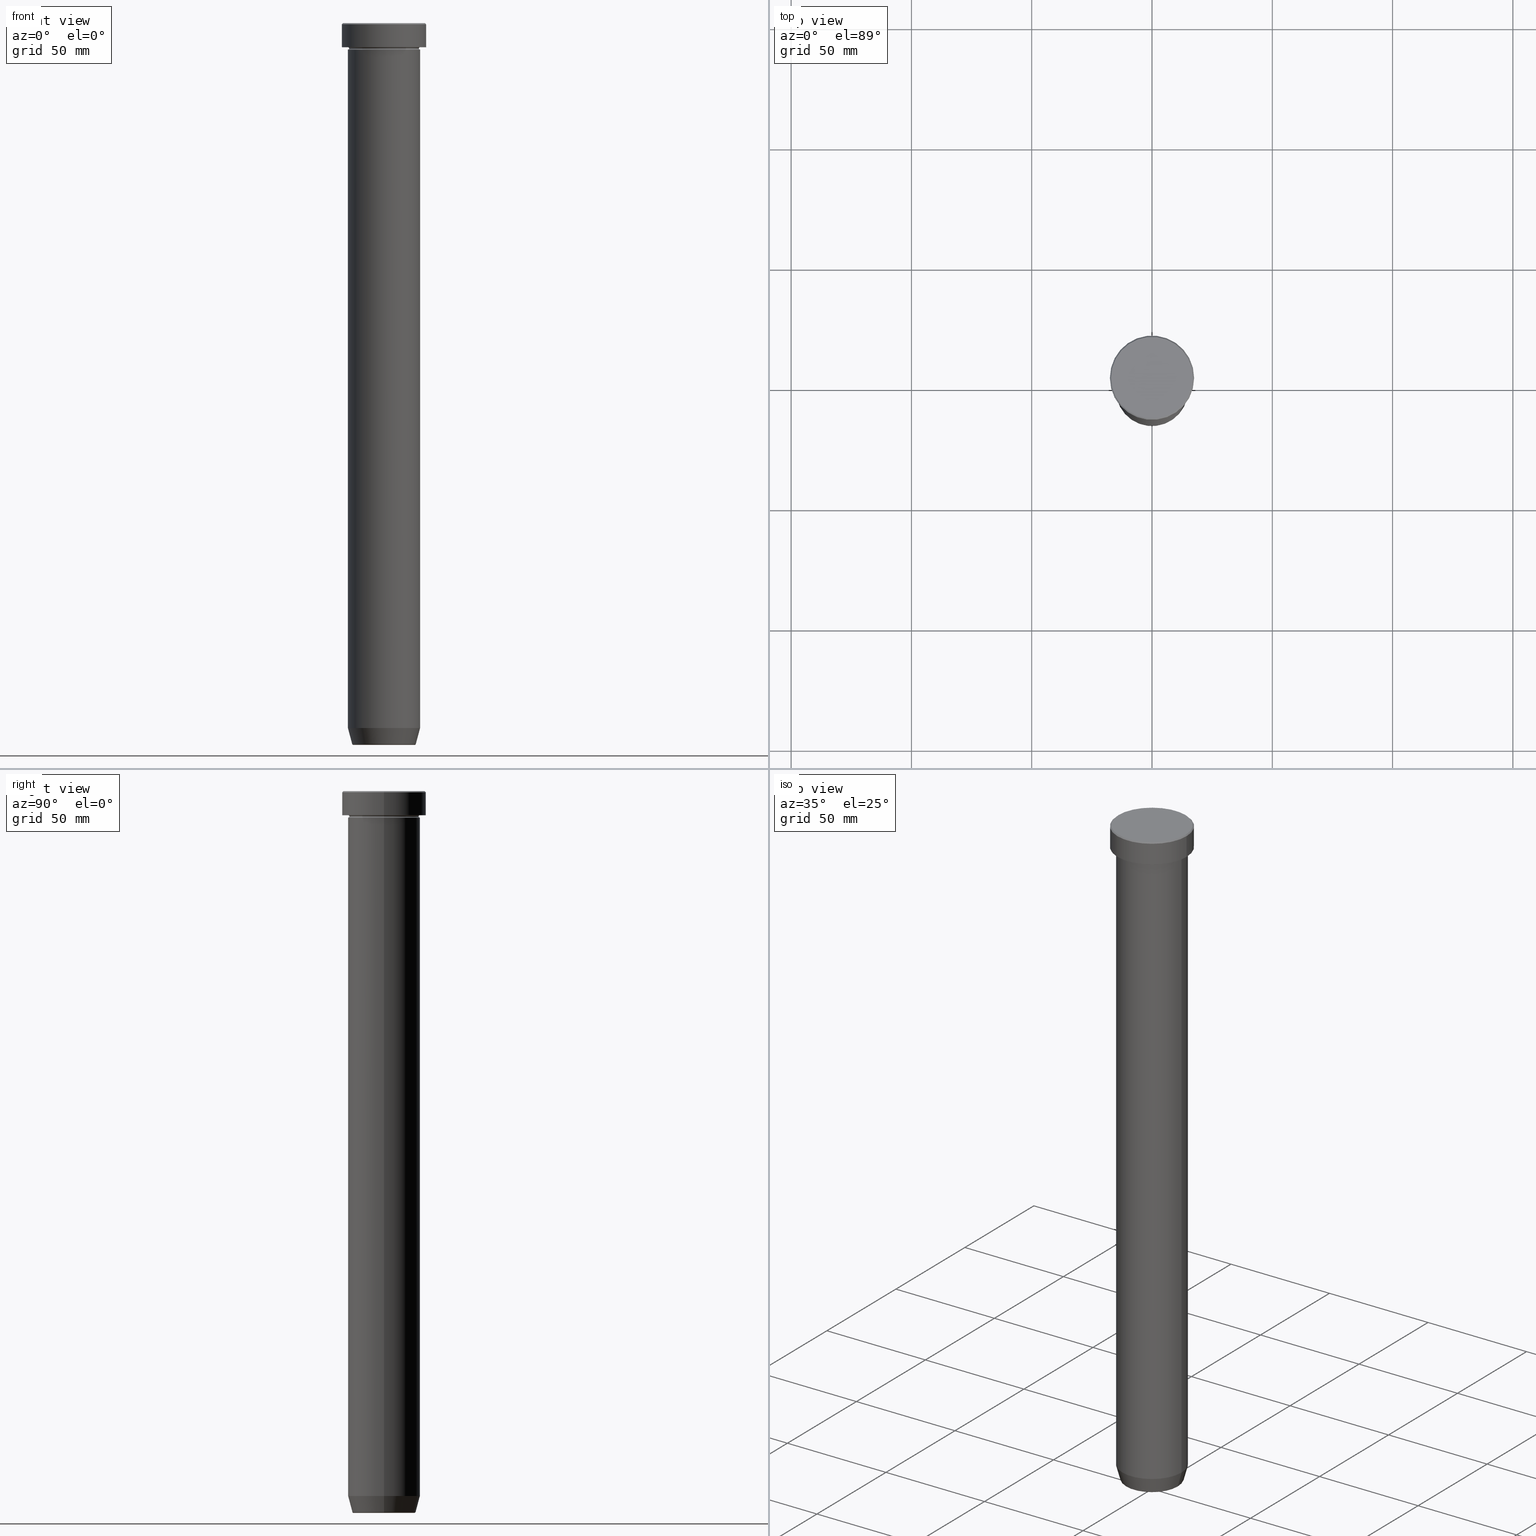
[diagram: canonical four-view strip — front | top / right | iso, engineering-drawing reading convention]
A machine part, canonical four-view strip (front | top / right | iso — engineering-drawing reading convention). The complete STEP part file that produces these views, byte-faithful:
ISO-10303-21;
HEADER;
FILE_DESCRIPTION (( 'STEP AP203' ),
    '1' );
FILE_NAME ('7646.STEP',
    '2024-01-02T17:36:42',
    ( '' ),
    ( '' ),
    'SwSTEP 2.0',
    'SolidWorks 2019',
    '' );
FILE_SCHEMA (( 'CONFIG_CONTROL_DESIGN' ));
ENDSEC;

DATA;
#1 = DIRECTION ( 'NONE',  ( -0.000000000000000000, -0.000000000000000000, 1.000000000000000000 ) ) ;
#2 = EDGE_CURVE ( 'NONE', #7, #527, #594, .T. ) ;
#3 = EDGE_LOOP ( 'NONE', ( #480, #58, #198, #115 ) ) ;
#4 =( NAMED_UNIT ( * ) SI_UNIT ( $, .STERADIAN. ) SOLID_ANGLE_UNIT ( ) );
#5 = CONICAL_SURFACE ( 'NONE', #574, 13.12435565298213547, 0.2617993877991497964 ) ;
#6 = FACE_OUTER_BOUND ( 'NONE', #286, .T. ) ;
#7 = VERTEX_POINT ( 'NONE', #110 ) ;
#8 = CIRCLE ( 'NONE', #329, 14.49999999999999822 ) ;
#9 = APPROVAL_ROLE ( '' ) ;
#10 = DIRECTION ( 'NONE',  ( -0.000000000000000000, -0.000000000000000000, 1.000000000000000000 ) ) ;
#11 = EDGE_LOOP ( 'NONE', ( #140, #394 ) ) ;
#12 = CARTESIAN_POINT ( 'NONE',  ( 0.000000000000000000, 0.000000000000000000, -0.5000000000000073275 ) ) ;
#13 = ORIENTED_EDGE ( 'NONE', *, *, #53, .F. ) ;
#14 = LOCAL_TIME ( 18, 36, 42.00000000000000000, #338 ) ;
#15 = AXIS2_PLACEMENT_3D ( 'NONE', #567, #474, #59 ) ;
#16 = ORIENTED_EDGE ( 'NONE', *, *, #336, .F. ) ;
#17 = VERTEX_POINT ( 'NONE', #203 ) ;
#18 = CARTESIAN_POINT ( 'NONE',  ( 0.000000000000000000, 0.000000000000000000, -36.00000000000000000 ) ) ;
#19 = VECTOR ( 'NONE', #302, 1000.000000000000000 ) ;
#20 = AXIS2_PLACEMENT_3D ( 'NONE', #535, #248, #212 ) ;
#21 = ORIENTED_EDGE ( 'NONE', *, *, #560, .F. ) ;
#22 = DIRECTION ( 'NONE',  ( -0.000000000000000000, -0.000000000000000000, 1.000000000000000000 ) ) ;
#23 = TOROIDAL_SURFACE ( 'NONE', #56, 15.00000000000000000, 0.5000000000000000000 ) ;
#24 = CALENDAR_DATE ( 2024, 2, 1 ) ;
#25 = ORIENTED_EDGE ( 'NONE', *, *, #300, .F. ) ;
#26 = DIRECTION ( 'NONE',  ( 0.7071067811865426878, 8.659560562354874926E-17, -0.7071067811865524577 ) ) ;
#27 = ADVANCED_FACE ( 'NONE', ( #397 ), #289, .F. ) ;
#28 = PERSON_AND_ORGANIZATION_ROLE ( 'classification_officer' ) ;
#29 = DIRECTION ( 'NONE',  ( -0.000000000000000000, -0.000000000000000000, 1.000000000000000000 ) ) ;
#30 = DIRECTION ( 'NONE',  ( -0.000000000000000000, -0.000000000000000000, 1.000000000000000000 ) ) ;
#31 = CIRCLE ( 'NONE', #365, 17.50000000000000000 ) ;
#32 = CARTESIAN_POINT ( 'NONE',  ( 0.000000000000000000, 0.000000000000000000, -300.0000000000000000 ) ) ;
#33 = DIRECTION ( 'NONE',  ( -1.000000000000000000, -1.224646799147349509E-16, 0.000000000000000000 ) ) ;
#34 = CARTESIAN_POINT ( 'NONE',  ( 0.000000000000000000, 0.000000000000000000, 0.000000000000000000 ) ) ;
#35 = DIRECTION ( 'NONE',  ( 1.224646799147353207E-16, 1.000000000000000000, 0.000000000000000000 ) ) ;
#36 = DIRECTION ( 'NONE',  ( -0.000000000000000000, -0.000000000000000000, 1.000000000000000000 ) ) ;
#37 = CARTESIAN_POINT ( 'NONE',  ( 15.00000000000000000, 0.000000000000000000, -36.00000000000000000 ) ) ;
#38 = AXIS2_PLACEMENT_3D ( 'NONE', #18, #197, #388 ) ;
#39 = CIRCLE ( 'NONE', #518, 17.50000000000000000 ) ;
#40 = VECTOR ( 'NONE', #22, 1000.000000000000000 ) ;
#41 = DIRECTION ( 'NONE',  ( -0.000000000000000000, -0.000000000000000000, 1.000000000000000000 ) ) ;
#42 = ORIENTED_EDGE ( 'NONE', *, *, #362, .T. ) ;
#43 = FACE_OUTER_BOUND ( 'NONE', #293, .T. ) ;
#44 = APPROVAL ( #418, 'NEUR�EN�' ) ;
#45 = EDGE_CURVE ( 'NONE', #64, #385, #344, .T. ) ;
#46 = FACE_OUTER_BOUND ( 'NONE', #490, .T. ) ;
#47 = ORIENTED_EDGE ( 'NONE', *, *, #551, .F. ) ;
#48 = APPROVAL_ROLE ( '' ) ;
#49 = DIRECTION ( 'NONE',  ( -0.000000000000000000, -0.000000000000000000, 1.000000000000000000 ) ) ;
#50 = ORIENTED_EDGE ( 'NONE', *, *, #118, .T. ) ;
#51 = LINE ( 'NONE', #215, #72 ) ;
#52 = TOROIDAL_SURFACE ( 'NONE', #379, 12.74069215899265828, 0.5000000000000000000 ) ;
#53 = EDGE_CURVE ( 'NONE', #339, #233, #377, .T. ) ;
#54 = CARTESIAN_POINT ( 'NONE',  ( 0.000000000000000000, 0.000000000000000000, 0.000000000000000000 ) ) ;
#55 = EDGE_LOOP ( 'NONE', ( #386, #486, #571, #330 ) ) ;
#56 = AXIS2_PLACEMENT_3D ( 'NONE', #559, #138, #182 ) ;
#57 = DIRECTION ( 'NONE',  ( 1.000000000000000000, 0.000000000000000000, 0.000000000000000000 ) ) ;
#58 = ORIENTED_EDGE ( 'NONE', *, *, #551, .T. ) ;
#59 = DIRECTION ( 'NONE',  ( 1.000000000000000000, 0.000000000000000000, 0.000000000000000000 ) ) ;
#60 = ORIENTED_EDGE ( 'NONE', *, *, #390, .F. ) ;
#61 = AXIS2_PLACEMENT_3D ( 'NONE', #319, #1, #183 ) ;
#62 = ORIENTED_EDGE ( 'NONE', *, *, #300, .T. ) ;
#63 = CARTESIAN_POINT ( 'NONE',  ( 0.000000000000000000, 3.061616997868383121E-14, -300.0000000000000000 ) ) ;
#64 = VERTEX_POINT ( 'NONE', #37 ) ;
#65 = DIRECTION ( 'NONE',  ( 1.000000000000000000, 0.000000000000000000, 0.000000000000000000 ) ) ;
#66 = CIRCLE ( 'NONE', #583, 13.22365507213718949 ) ;
#67 = VECTOR ( 'NONE', #26, 1000.000000000000000 ) ;
#68 = ORIENTED_EDGE ( 'NONE', *, *, #336, .T. ) ;
#69 = EDGE_CURVE ( 'NONE', #108, #297, #540, .T. ) ;
#70 = ADVANCED_FACE ( 'NONE', ( #356 ), #75, .T. ) ;
#71 = CARTESIAN_POINT ( 'NONE',  ( -17.50000000000000000, 2.143131898507868248E-15, -0.5000000000000073275 ) ) ;
#72 = VECTOR ( 'NONE', #449, 1000.000000000000000 ) ;
#73 = ORIENTED_EDGE ( 'NONE', *, *, #547, .T. ) ;
#74 = CARTESIAN_POINT ( 'NONE',  ( 0.000000000000000000, 0.000000000000000000, -9.999999999999998224 ) ) ;
#75 = CYLINDRICAL_SURFACE ( 'NONE', #205, 17.50000000000000000 ) ;
#76 = ADVANCED_FACE ( 'NONE', ( #175 ), #359, .T. ) ;
#77 = CARTESIAN_POINT ( 'NONE',  ( -15.00000000000000000, 0.000000000000000000, -9.999999999999998224 ) ) ;
#78 = PERSON_AND_ORGANIZATION ( #239, #532 ) ;
#79 = CIRCLE ( 'NONE', #497, 12.74069215899265828 ) ;
#80 = CARTESIAN_POINT ( 'NONE',  ( 0.000000000000000000, 0.000000000000000000, -11.00000000000000000 ) ) ;
#81 = AXIS2_PLACEMENT_3D ( 'NONE', #106, #298, #204 ) ;
#82 = DIRECTION ( 'NONE',  ( -0.000000000000000000, -0.000000000000000000, 1.000000000000000000 ) ) ;
#83 = CARTESIAN_POINT ( 'NONE',  ( 12.74069215899265828, 0.000000000000000000, -299.5000000000000000 ) ) ;
#84 = DIRECTION ( 'NONE',  ( -0.000000000000000000, -0.000000000000000000, 1.000000000000000000 ) ) ;
#85 = DIRECTION ( 'NONE',  ( 0.000000000000000000, 0.000000000000000000, -1.000000000000000000 ) ) ;
#86 = CARTESIAN_POINT ( 'NONE',  ( -14.49999999999999822, 1.806354028742345802E-15, -10.49999999999999822 ) ) ;
#87 = DIRECTION ( 'NONE',  ( 0.000000000000000000, 0.000000000000000000, -1.000000000000000000 ) ) ;
#88 = VECTOR ( 'NONE', #36, 1000.000000000000000 ) ;
#89 = VECTOR ( 'NONE', #126, 1000.000000000000000 ) ;
#90 = CARTESIAN_POINT ( 'NONE',  ( 17.00000000000000000, 2.112515728529184067E-15, 0.000000000000000000 ) ) ;
#91 = AXIS2_PLACEMENT_3D ( 'NONE', #74, #586, #539 ) ;
#92 = PERSON_AND_ORGANIZATION ( #239, #532 ) ;
#93 = DIRECTION ( 'NONE',  ( 0.000000000000000000, 0.000000000000000000, -1.000000000000000000 ) ) ;
#94 = ORIENTED_EDGE ( 'NONE', *, *, #69, .T. ) ;
#95 = DIRECTION ( 'NONE',  ( -0.000000000000000000, -0.000000000000000000, 1.000000000000000000 ) ) ;
#96 = DESIGN_CONTEXT ( 'detailed design', #396, 'design' ) ;
#97 = ADVANCED_FACE ( 'NONE', ( #218 ), #496, .F. ) ;
#98 = CARTESIAN_POINT ( 'NONE',  ( 0.000000000000000000, 0.000000000000000000, 0.000000000000000000 ) ) ;
#99 = ORIENTED_EDGE ( 'NONE', *, *, #503, .F. ) ;
#100 = DATE_AND_TIME ( #141, #235 ) ;
#101 = AXIS2_PLACEMENT_3D ( 'NONE', #283, #512, #423 ) ;
#102 = DIRECTION ( 'NONE',  ( -1.000000000000000000, 0.000000000000000000, 0.000000000000000000 ) ) ;
#103 = ORIENTED_EDGE ( 'NONE', *, *, #207, .T. ) ;
#104 = CYLINDRICAL_SURFACE ( 'NONE', #468, 15.00000000000000000 ) ;
#105 = ORIENTED_EDGE ( 'NONE', *, *, #362, .F. ) ;
#106 = CARTESIAN_POINT ( 'NONE',  ( 0.000000000000000000, 0.000000000000000000, 0.000000000000000000 ) ) ;
#107 = AXIS2_PLACEMENT_3D ( 'NONE', #269, #460, #221 ) ;
#108 = VERTEX_POINT ( 'NONE', #554 ) ;
#109 = AXIS2_PLACEMENT_3D ( 'NONE', #549, #407, #552 ) ;
#110 = CARTESIAN_POINT ( 'NONE',  ( 15.00000000000000000, 1.836970198721029589E-15, -9.999999999999998224 ) ) ;
#111 = VECTOR ( 'NONE', #514, 1000.000000000000114 ) ;
#112 = EDGE_LOOP ( 'NONE', ( #528, #42, #155, #99 ) ) ;
#113 = PERSON_AND_ORGANIZATION_ROLE ( 'design_supplier' ) ;
#114 = APPROVAL ( #578, 'NEUR�EN�' ) ;
#115 = ORIENTED_EDGE ( 'NONE', *, *, #2, .F. ) ;
#116 = FACE_OUTER_BOUND ( 'NONE', #55, .T. ) ;
#117 = AXIS2_PLACEMENT_3D ( 'NONE', #322, #426, #230 ) ;
#118 = EDGE_CURVE ( 'NONE', #332, #422, #415, .T. ) ;
#119 = ORIENTED_EDGE ( 'NONE', *, *, #363, .T. ) ;
#120 = DIRECTION ( 'NONE',  ( 1.000000000000000000, 0.000000000000000000, 0.000000000000000000 ) ) ;
#121 = AXIS2_PLACEMENT_3D ( 'NONE', #257, #445, #33 ) ;
#122 = VERTEX_POINT ( 'NONE', #593 ) ;
#123 = CARTESIAN_POINT ( 'NONE',  ( 0.000000000000000000, 0.000000000000000000, 0.000000000000000000 ) ) ;
#124 = DATE_AND_TIME ( #24, #582 ) ;
#125 = CARTESIAN_POINT ( 'NONE',  ( -15.00000000000000000, 1.836970198721029589E-15, 0.000000000000000000 ) ) ;
#126 = DIRECTION ( 'NONE',  ( -0.7071067811865426878, 0.000000000000000000, -0.7071067811865524577 ) ) ;
#127 = PERSON_AND_ORGANIZATION_ROLE ( 'creator' ) ;
#128 = DIRECTION ( 'NONE',  ( 0.000000000000000000, -1.000000000000000000, 0.000000000000000000 ) ) ;
#129 = AXIS2_PLACEMENT_3D ( 'NONE', #546, #84, #264 ) ;
#130 = DIRECTION ( 'NONE',  ( -0.000000000000000000, -0.000000000000000000, 1.000000000000000000 ) ) ;
#131 = EDGE_CURVE ( 'NONE', #233, #231, #145, .T. ) ;
#132 = DIRECTION ( 'NONE',  ( -1.000000000000000000, 0.000000000000000000, -0.000000000000000000 ) ) ;
#133 = AXIS2_PLACEMENT_3D ( 'NONE', #409, #351, #171 ) ;
#134 = AXIS2_PLACEMENT_3D ( 'NONE', #589, #395, #489 ) ;
#135 = DIRECTION ( 'NONE',  ( 0.2588190451025210725, 0.000000000000000000, 0.9659258262890680902 ) ) ;
#136 = CARTESIAN_POINT ( 'NONE',  ( -15.00000000000000000, 1.836970198721029589E-15, -11.00000000000000000 ) ) ;
#137 = EDGE_LOOP ( 'NONE', ( #25, #157, #165, #381 ) ) ;
#138 = DIRECTION ( 'NONE',  ( 0.000000000000000000, 0.000000000000000000, -1.000000000000000000 ) ) ;
#139 = DIRECTION ( 'NONE',  ( -1.000000000000000000, 0.000000000000000000, 0.000000000000000000 ) ) ;
#140 = ORIENTED_EDGE ( 'NONE', *, *, #456, .T. ) ;
#141 = CALENDAR_DATE ( 2024, 2, 1 ) ;
#142 = EDGE_CURVE ( 'NONE', #385, #231, #211, .T. ) ;
#143 = CARTESIAN_POINT ( 'NONE',  ( -13.22365507213718949, 1.728200442216588189E-15, -299.6294095225512137 ) ) ;
#144 = EDGE_LOOP ( 'NONE', ( #280, #228 ) ) ;
#145 = CIRCLE ( 'NONE', #227, 15.00000000000000000 ) ;
#146 = TOROIDAL_SURFACE ( 'NONE', #488, 12.74069215899265828, 0.5000000000000000000 ) ;
#147 = FACE_OUTER_BOUND ( 'NONE', #374, .T. ) ;
#148 = EDGE_LOOP ( 'NONE', ( #482, #569, #320, #13 ) ) ;
#149 = DIRECTION ( 'NONE',  ( 0.000000000000000000, -0.000000000000000000, 1.000000000000000000 ) ) ;
#150 = ORIENTED_EDGE ( 'NONE', *, *, #69, .F. ) ;
#151 = EDGE_CURVE ( 'NONE', #575, #339, #434, .T. ) ;
#152 = ADVANCED_FACE ( 'NONE', ( #405 ), #595, .T. ) ;
#153 = VERTEX_POINT ( 'NONE', #353 ) ;
#154 = AXIS2_PLACEMENT_3D ( 'NONE', #443, #41, #174 ) ;
#155 = ORIENTED_EDGE ( 'NONE', *, *, #348, .T. ) ;
#156 = ADVANCED_FACE ( 'NONE', ( #167 ), #326, .F. ) ;
#157 = ORIENTED_EDGE ( 'NONE', *, *, #456, .F. ) ;
#158 = EDGE_CURVE ( 'NONE', #536, #422, #173, .T. ) ;
#159 = CARTESIAN_POINT ( 'NONE',  ( 0.000000000000000000, 0.000000000000000000, -0.5000000000000073275 ) ) ;
#160 = APPROVAL_ROLE ( '' ) ;
#161 = ORIENTED_EDGE ( 'NONE', *, *, #459, .F. ) ;
#162 = DIRECTION ( 'NONE',  ( -0.000000000000000000, -0.000000000000000000, 1.000000000000000000 ) ) ;
#163 = AXIS2_PLACEMENT_3D ( 'NONE', #232, #93, #139 ) ;
#164 = CIRCLE ( 'NONE', #425, 15.00000000000000000 ) ;
#165 = ORIENTED_EDGE ( 'NONE', *, *, #158, .T. ) ;
#166 = CARTESIAN_POINT ( 'NONE',  ( -12.74069215899265828, 1.589857736427681035E-15, -300.0000000000000000 ) ) ;
#167 = FACE_OUTER_BOUND ( 'NONE', #323, .T. ) ;
#168 = EDGE_CURVE ( 'NONE', #428, #536, #79, .T. ) ;
#169 = FACE_OUTER_BOUND ( 'NONE', #516, .T. ) ;
#170 = PERSON_AND_ORGANIZATION ( #239, #532 ) ;
#171 = DIRECTION ( 'NONE',  ( -1.000000000000000000, 0.000000000000000000, -0.000000000000000000 ) ) ;
#172 = LINE ( 'NONE', #310, #111 ) ;
#173 = CIRCLE ( 'NONE', #455, 0.5000000000000004441 ) ;
#174 = DIRECTION ( 'NONE',  ( 1.000000000000000000, 0.000000000000000000, 0.000000000000000000 ) ) ;
#175 = FACE_OUTER_BOUND ( 'NONE', #458, .T. ) ;
#176 = DIRECTION ( 'NONE',  ( -0.000000000000000000, -0.000000000000000000, 1.000000000000000000 ) ) ;
#177 = EDGE_CURVE ( 'NONE', #122, #209, #573, .T. ) ;
#178 = ADVANCED_FACE ( 'NONE', ( #599, #448 ), #505, .T. ) ;
#179 = DIRECTION ( 'NONE',  ( -0.000000000000000000, -0.000000000000000000, 1.000000000000000000 ) ) ;
#180 = VECTOR ( 'NONE', #472, 1000.000000000000000 ) ;
#181 = ORIENTED_EDGE ( 'NONE', *, *, #502, .F. ) ;
#182 = DIRECTION ( 'NONE',  ( -1.000000000000000000, 0.000000000000000000, 0.000000000000000000 ) ) ;
#183 = DIRECTION ( 'NONE',  ( -1.000000000000000000, 0.000000000000000000, 0.000000000000000000 ) ) ;
#184 = AXIS2_PLACEMENT_3D ( 'NONE', #406, #368, #464 ) ;
#185 = ORIENTED_EDGE ( 'NONE', *, *, #419, .F. ) ;
#186 = CALENDAR_DATE ( 2024, 2, 1 ) ;
#187 = DIRECTION ( 'NONE',  ( 1.224646799147353207E-16, 1.000000000000000000, 0.000000000000000000 ) ) ;
#188 = ORIENTED_EDGE ( 'NONE', *, *, #372, .T. ) ;
#189 = LOCAL_TIME ( 18, 36, 42.00000000000000000, #225 ) ;
#190 = CARTESIAN_POINT ( 'NONE',  ( 14.49999999999999822, 0.000000000000000000, -10.49999999999999822 ) ) ;
#191 = ORIENTED_EDGE ( 'NONE', *, *, #151, .T. ) ;
#192 = CIRCLE ( 'NONE', #101, 17.00000000000000000 ) ;
#193 = CC_DESIGN_PERSON_AND_ORGANIZATION_ASSIGNMENT ( #364, #317, ( #521 ) ) ;
#194 = DIRECTION ( 'NONE',  ( -1.000000000000000000, 1.224646799147353454E-16, 0.000000000000000000 ) ) ;
#195 = ORIENTED_EDGE ( 'NONE', *, *, #459, .T. ) ;
#196 = ORIENTED_EDGE ( 'NONE', *, *, #254, .T. ) ;
#197 = DIRECTION ( 'NONE',  ( -0.000000000000000000, -0.000000000000000000, 1.000000000000000000 ) ) ;
#198 = ORIENTED_EDGE ( 'NONE', *, *, #581, .T. ) ;
#199 = PLANE ( 'NONE',  #478 ) ;
#200 = PERSON_AND_ORGANIZATION ( #239, #532 ) ;
#201 = ORIENTED_EDGE ( 'NONE', *, *, #495, .F. ) ;
#202 = CARTESIAN_POINT ( 'NONE',  ( 0.000000000000000000, 0.000000000000000000, -36.00000000000000000 ) ) ;
#203 = CARTESIAN_POINT ( 'NONE',  ( -17.50000000000000000, 2.143131898507868248E-15, -9.999999999999998224 ) ) ;
#204 = DIRECTION ( 'NONE',  ( 1.000000000000000000, 0.000000000000000000, 0.000000000000000000 ) ) ;
#205 = AXIS2_PLACEMENT_3D ( 'NONE', #591, #176, #256 ) ;
#206 = CIRCLE ( 'NONE', #287, 15.00000000000000000 ) ;
#207 = EDGE_CURVE ( 'NONE', #108, #17, #427, .T. ) ;
#208 = CARTESIAN_POINT ( 'NONE',  ( 0.000000000000000000, 0.000000000000000000, -9.999999999999998224 ) ) ;
#209 = VERTEX_POINT ( 'NONE', #378 ) ;
#210 = CARTESIAN_POINT ( 'NONE',  ( 12.74069215899265828, 0.000000000000000000, -300.0000000000000000 ) ) ;
#211 = LINE ( 'NONE', #125, #19 ) ;
#212 = DIRECTION ( 'NONE',  ( 1.000000000000000000, 0.000000000000000000, 0.000000000000000000 ) ) ;
#213 = DIRECTION ( 'NONE',  ( 0.000000000000000000, 0.000000000000000000, -1.000000000000000000 ) ) ;
#214 = CC_DESIGN_DATE_AND_TIME_ASSIGNMENT ( #100, #517, ( #537 ) ) ;
#215 = CARTESIAN_POINT ( 'NONE',  ( -15.00000000000000000, 1.836970198721029589E-15, 0.000000000000000000 ) ) ;
#216 = AXIS2_PLACEMENT_3D ( 'NONE', #63, #584, #431 ) ;
#217 = AXIS2_PLACEMENT_3D ( 'NONE', #34, #213, #544 ) ;
#218 = FACE_OUTER_BOUND ( 'NONE', #144, .T. ) ;
#219 = CARTESIAN_POINT ( 'NONE',  ( -15.00000000000000000, 0.000000000000000000, -10.49999999999999822 ) ) ;
#220 = DIRECTION ( 'NONE',  ( 0.000000000000000000, 0.000000000000000000, -1.000000000000000000 ) ) ;
#221 = DIRECTION ( 'NONE',  ( 1.000000000000000000, 0.000000000000000000, 0.000000000000000000 ) ) ;
#222 = UNCERTAINTY_MEASURE_WITH_UNIT (LENGTH_MEASURE( 1.000000000000000082E-05 ), #454, 'distance_accuracy_value', 'NONE');
#223 = CARTESIAN_POINT ( 'NONE',  ( 17.50000000000000000, 0.000000000000000000, -0.5000000000000073275 ) ) ;
#224 = EDGE_LOOP ( 'NONE', ( #161, #470, #188, #506 ) ) ;
#225 = COORDINATED_UNIVERSAL_TIME_OFFSET ( 1, 0, .AHEAD. ) ;
#226 = CARTESIAN_POINT ( 'NONE',  ( 15.00000000000000000, 0.000000000000000000, 0.000000000000000000 ) ) ;
#227 = AXIS2_PLACEMENT_3D ( 'NONE', #80, #597, #446 ) ;
#228 = ORIENTED_EDGE ( 'NONE', *, *, #587, .T. ) ;
#229 = COORDINATED_UNIVERSAL_TIME_OFFSET ( 1, 0, .AHEAD. ) ;
#230 = DIRECTION ( 'NONE',  ( 1.000000000000000000, 0.000000000000000000, 0.000000000000000000 ) ) ;
#231 = VERTEX_POINT ( 'NONE', #136 ) ;
#232 = CARTESIAN_POINT ( 'NONE',  ( 0.000000000000000000, 0.000000000000000000, 0.000000000000000000 ) ) ;
#233 = VERTEX_POINT ( 'NONE', #369 ) ;
#234 = ADVANCED_FACE ( 'NONE', ( #147 ), #545, .T. ) ;
#235 = LOCAL_TIME ( 18, 36, 42.00000000000000000, #229 ) ;
#236 = CARTESIAN_POINT ( 'NONE',  ( 0.000000000000000000, 0.000000000000000000, -299.6294095225512137 ) ) ;
#237 = CLOSED_SHELL ( 'NONE', ( #484, #435, #291, #97, #76, #234, #27, #263 ) ) ;
#238 = ORIENTED_EDGE ( 'NONE', *, *, #177, .F. ) ;
#239 = PERSON ( 'NEUR�EN�', 'NEUR�EN�', 'NEUR�EN�', ('NEUR�EN�'), ('NEUR�EN�'), ('NEUR�EN�') ) ;
#240 =( GEOMETRIC_REPRESENTATION_CONTEXT ( 3 ) GLOBAL_UNCERTAINTY_ASSIGNED_CONTEXT ( ( #222 ) ) GLOBAL_UNIT_ASSIGNED_CONTEXT ( ( #454, #550, #4 ) ) REPRESENTATION_CONTEXT ( 'NONE', 'WORKASPACE' ) );
#241 = CIRCLE ( 'NONE', #314, 0.5000000000000004441 ) ;
#242 = ORIENTED_EDGE ( 'NONE', *, *, #2, .T. ) ;
#243 = ORIENTED_EDGE ( 'NONE', *, *, #529, .T. ) ;
#244 = ADVANCED_BREP_SHAPE_REPRESENTATION ( '7646', ( #596, #393, #107 ), #240 ) ;
#245 = ORIENTED_EDGE ( 'NONE', *, *, #131, .T. ) ;
#246 = CLOSED_SHELL ( 'NONE', ( #282, #343, #281, #487, #303, #563, #391, #70, #178, #548, #156, #541, #152 ) ) ;
#247 = VECTOR ( 'NONE', #465, 1000.000000000000000 ) ;
#248 = DIRECTION ( 'NONE',  ( 0.000000000000000000, 0.000000000000000000, -1.000000000000000000 ) ) ;
#249 = DATE_TIME_ROLE ( 'classification_date' ) ;
#250 = EDGE_LOOP ( 'NONE', ( #342, #62, #337, #417 ) ) ;
#251 = CARTESIAN_POINT ( 'NONE',  ( 0.000000000000000000, 0.000000000000000000, -299.5000000000000000 ) ) ;
#252 = VERTEX_POINT ( 'NONE', #90 ) ;
#253 = LINE ( 'NONE', #439, #89 ) ;
#254 = EDGE_CURVE ( 'NONE', #527, #7, #295, .T. ) ;
#255 = APPROVAL_DATE_TIME ( #590, #44 ) ;
#256 = DIRECTION ( 'NONE',  ( 1.000000000000000000, 0.000000000000000000, 0.000000000000000000 ) ) ;
#257 = CARTESIAN_POINT ( 'NONE',  ( 15.00000000000000000, 1.836970198721029589E-15, -10.49999999999999822 ) ) ;
#258 = CIRCLE ( 'NONE', #20, 12.74069215899265828 ) ;
#259 = DIRECTION ( 'NONE',  ( -0.000000000000000000, -0.000000000000000000, 1.000000000000000000 ) ) ;
#260 = FACE_OUTER_BOUND ( 'NONE', #250, .T. ) ;
#261 = CALENDAR_DATE ( 2024, 2, 1 ) ;
#262 = CARTESIAN_POINT ( 'NONE',  ( 0.000000000000000000, 17.50000000000000000, -9.999999999999998224 ) ) ;
#263 = ADVANCED_FACE ( 'NONE', ( #270 ), #52, .T. ) ;
#264 = DIRECTION ( 'NONE',  ( 1.000000000000000000, 0.000000000000000000, 0.000000000000000000 ) ) ;
#265 = DIRECTION ( 'NONE',  ( 1.000000000000000000, 0.000000000000000000, 0.000000000000000000 ) ) ;
#266 = AXIS2_PLACEMENT_3D ( 'NONE', #334, #29, #349 ) ;
#267 = TOROIDAL_SURFACE ( 'NONE', #508, 15.00000000000000000, 0.5000000000000000000 ) ;
#268 = DIRECTION ( 'NONE',  ( -1.000000000000000000, 0.000000000000000000, -0.000000000000000000 ) ) ;
#269 = CARTESIAN_POINT ( 'NONE',  ( 0.000000000000000000, 0.000000000000000000, 0.000000000000000000 ) ) ;
#270 = FACE_OUTER_BOUND ( 'NONE', #137, .T. ) ;
#271 = APPROVAL_STATUS ( 'not_yet_approved' ) ;
#272 = CARTESIAN_POINT ( 'NONE',  ( -17.50000000000000000, 2.143131898507868248E-15, 0.000000000000000000 ) ) ;
#273 = EDGE_LOOP ( 'NONE', ( #576, #367 ) ) ;
#274 = CARTESIAN_POINT ( 'NONE',  ( 0.000000000000000000, 15.00000000000000000, -36.00000000000000000 ) ) ;
#275 = CARTESIAN_POINT ( 'NONE',  ( -12.74069215899265828, 1.560284787143214098E-15, -299.5000000000000000 ) ) ;
#276 = AXIS2_PLACEMENT_3D ( 'NONE', #411, #309, #307 ) ;
#277 = ORIENTED_EDGE ( 'NONE', *, *, #325, .T. ) ;
#278 = PERSON_AND_ORGANIZATION ( #239, #532 ) ;
#279 = LINE ( 'NONE', #226, #180 ) ;
#280 = ORIENTED_EDGE ( 'NONE', *, *, #419, .T. ) ;
#281 = ADVANCED_FACE ( 'NONE', ( #561 ), #387, .F. ) ;
#282 = ADVANCED_FACE ( 'NONE', ( #462 ), #432, .T. ) ;
#283 = CARTESIAN_POINT ( 'NONE',  ( 0.000000000000000000, 0.000000000000000000, 0.000000000000000000 ) ) ;
#284 = VERTEX_POINT ( 'NONE', #515 ) ;
#285 = LINE ( 'NONE', #389, #40 ) ;
#286 = EDGE_LOOP ( 'NONE', ( #438, #370, #185, #201 ) ) ;
#287 = AXIS2_PLACEMENT_3D ( 'NONE', #202, #162, #350 ) ;
#288 = CIRCLE ( 'NONE', #91, 17.50000000000000000 ) ;
#289 = PLANE ( 'NONE',  #216 ) ;
#290 = ORIENTED_EDGE ( 'NONE', *, *, #45, .F. ) ;
#291 = ADVANCED_FACE ( 'NONE', ( #6 ), #104, .T. ) ;
#292 = COORDINATED_UNIVERSAL_TIME_OFFSET ( 1, 0, .AHEAD. ) ;
#293 = EDGE_LOOP ( 'NONE', ( #290, #105 ) ) ;
#294 = APPROVAL_PERSON_ORGANIZATION ( #278, #44, #9 ) ;
#295 = CIRCLE ( 'NONE', #61, 15.00000000000000000 ) ;
#296 = DIRECTION ( 'NONE',  ( 1.000000000000000000, 0.000000000000000000, 0.000000000000000000 ) ) ;
#297 = VERTEX_POINT ( 'NONE', #223 ) ;
#298 = DIRECTION ( 'NONE',  ( -0.000000000000000000, -0.000000000000000000, 1.000000000000000000 ) ) ;
#299 = DIRECTION ( 'NONE',  ( 0.000000000000000000, 0.000000000000000000, -1.000000000000000000 ) ) ;
#300 = EDGE_CURVE ( 'NONE', #428, #332, #355, .T. ) ;
#301 = DIRECTION ( 'NONE',  ( -1.000000000000000000, 0.000000000000000000, 0.000000000000000000 ) ) ;
#302 = DIRECTION ( 'NONE',  ( -0.000000000000000000, -0.000000000000000000, 1.000000000000000000 ) ) ;
#303 = ADVANCED_FACE ( 'NONE', ( #469 ), #412, .T. ) ;
#304 = DIRECTION ( 'NONE',  ( 1.000000000000000000, 0.000000000000000000, 0.000000000000000000 ) ) ;
#305 = AXIS2_PLACEMENT_3D ( 'NONE', #208, #402, #588 ) ;
#306 = COORDINATED_UNIVERSAL_TIME_OFFSET ( 1, 0, .AHEAD. ) ;
#307 = DIRECTION ( 'NONE',  ( 1.000000000000000000, 0.000000000000000000, 0.000000000000000000 ) ) ;
#308 = EDGE_CURVE ( 'NONE', #413, #252, #192, .T. ) ;
#309 = DIRECTION ( 'NONE',  ( -0.000000000000000000, -0.000000000000000000, 1.000000000000000000 ) ) ;
#310 = CARTESIAN_POINT ( 'NONE',  ( -13.12435565298213547, 1.607270014129604385E-15, -300.0000000000000000 ) ) ;
#311 = PRODUCT_DEFINITION_SHAPE ( 'NONE', 'NONE',  #537 ) ;
#312 = DIRECTION ( 'NONE',  ( 1.000000000000000000, 0.000000000000000000, 0.000000000000000000 ) ) ;
#313 = APPROVAL_PERSON_ORGANIZATION ( #92, #538, #48 ) ;
#314 = AXIS2_PLACEMENT_3D ( 'NONE', #531, #35, #491 ) ;
#315 = CARTESIAN_POINT ( 'NONE',  ( 0.000000000000000000, 0.000000000000000000, -10.49999999999999822 ) ) ;
#316 = CC_DESIGN_PERSON_AND_ORGANIZATION_ASSIGNMENT ( #324, #371, ( #537 ) ) ;
#317 = PERSON_AND_ORGANIZATION_ROLE ( 'design_owner' ) ;
#318 = AXIS2_PLACEMENT_3D ( 'NONE', #274, #467, #132 ) ;
#319 = CARTESIAN_POINT ( 'NONE',  ( 0.000000000000000000, 0.000000000000000000, -9.999999999999998224 ) ) ;
#320 = ORIENTED_EDGE ( 'NONE', *, *, #503, .T. ) ;
#321 = PLANE ( 'NONE',  #318 ) ;
#322 = CARTESIAN_POINT ( 'NONE',  ( 0.000000000000000000, 0.000000000000000000, -300.0000000000000000 ) ) ;
#323 = EDGE_LOOP ( 'NONE', ( #530, #47, #523, #245 ) ) ;
#324 = PERSON_AND_ORGANIZATION ( #239, #532 ) ;
#325 = EDGE_CURVE ( 'NONE', #520, #297, #39, .T. ) ;
#326 = TOROIDAL_SURFACE ( 'NONE', #276, 15.00000000000000000, 0.5000000000000000000 ) ;
#327 = ORIENTED_EDGE ( 'NONE', *, *, #587, .F. ) ;
#328 = CARTESIAN_POINT ( 'NONE',  ( 0.000000000000000000, 0.000000000000000000, -299.5000000000000000 ) ) ;
#329 = AXIS2_PLACEMENT_3D ( 'NONE', #555, #95, #507 ) ;
#330 = ORIENTED_EDGE ( 'NONE', *, *, #348, .F. ) ;
#331 = CARTESIAN_POINT ( 'NONE',  ( 17.00000000000000000, 2.081899558550500280E-15, 0.000000000000000000 ) ) ;
#332 = VERTEX_POINT ( 'NONE', #143 ) ;
#333 = SECURITY_CLASSIFICATION ( '', '', #437 ) ;
#334 = CARTESIAN_POINT ( 'NONE',  ( 0.000000000000000000, 0.000000000000000000, -9.999999999999998224 ) ) ;
#335 = AXIS2_PLACEMENT_3D ( 'NONE', #54, #179, #382 ) ;
#336 = EDGE_CURVE ( 'NONE', #17, #520, #557, .T. ) ;
#337 = ORIENTED_EDGE ( 'NONE', *, *, #363, .F. ) ;
#338 = COORDINATED_UNIVERSAL_TIME_OFFSET ( 1, 0, .AHEAD. ) ;
#339 = VERTEX_POINT ( 'NONE', #190 ) ;
#340 = DIRECTION ( 'NONE',  ( -0.000000000000000000, -0.000000000000000000, 1.000000000000000000 ) ) ;
#341 = APPROVAL_DATE_TIME ( #543, #114 ) ;
#342 = ORIENTED_EDGE ( 'NONE', *, *, #168, .F. ) ;
#343 = ADVANCED_FACE ( 'NONE', ( #46 ), #267, .F. ) ;
#344 = CIRCLE ( 'NONE', #38, 15.00000000000000000 ) ;
#345 = LOCAL_TIME ( 18, 36, 42.00000000000000000, #292 ) ;
#346 = AXIS2_PLACEMENT_3D ( 'NONE', #275, #187, #194 ) ;
#347 = CARTESIAN_POINT ( 'NONE',  ( 0.000000000000000000, 0.000000000000000000, -300.0000000000000000 ) ) ;
#348 = EDGE_CURVE ( 'NONE', #64, #233, #279, .T. ) ;
#349 = DIRECTION ( 'NONE',  ( -1.000000000000000000, 0.000000000000000000, 0.000000000000000000 ) ) ;
#350 = DIRECTION ( 'NONE',  ( 1.000000000000000000, 0.000000000000000000, 0.000000000000000000 ) ) ;
#351 = DIRECTION ( 'NONE',  ( 0.000000000000000000, 0.000000000000000000, -1.000000000000000000 ) ) ;
#352 = CARTESIAN_POINT ( 'NONE',  ( -15.00000000000000000, 1.836970198721029589E-15, -36.00000000000000000 ) ) ;
#353 = CARTESIAN_POINT ( 'NONE',  ( -15.00000000000000000, 1.836970198721029589E-15, -36.00000000000000000 ) ) ;
#354 = LINE ( 'NONE', #358, #429 ) ;
#355 = CIRCLE ( 'NONE', #346, 0.5000000000000004441 ) ;
#356 = FACE_OUTER_BOUND ( 'NONE', #440, .T. ) ;
#357 = APPLICATION_CONTEXT ( 'configuration controlled 3d designs of mechanical parts and assemblies' ) ;
#358 = CARTESIAN_POINT ( 'NONE',  ( 13.12435565298213547, 0.000000000000000000, -300.0000000000000000 ) ) ;
#359 = CYLINDRICAL_SURFACE ( 'NONE', #476, 15.00000000000000000 ) ;
#360 = MECHANICAL_CONTEXT ( 'NONE', #357, 'mechanical' ) ;
#361 = DIRECTION ( 'NONE',  ( 1.000000000000000000, 0.000000000000000000, 0.000000000000000000 ) ) ;
#362 = EDGE_CURVE ( 'NONE', #385, #64, #556, .T. ) ;
#363 = EDGE_CURVE ( 'NONE', #422, #332, #66, .T. ) ;
#364 = PERSON_AND_ORGANIZATION ( #239, #532 ) ;
#365 = AXIS2_PLACEMENT_3D ( 'NONE', #159, #447, #304 ) ;
#366 = DIRECTION ( 'NONE',  ( 1.000000000000000000, 0.000000000000000000, 0.000000000000000000 ) ) ;
#367 = ORIENTED_EDGE ( 'NONE', *, *, #525, .F. ) ;
#368 = DIRECTION ( 'NONE',  ( -0.000000000000000000, -0.000000000000000000, 1.000000000000000000 ) ) ;
#369 = CARTESIAN_POINT ( 'NONE',  ( 15.00000000000000000, 0.000000000000000000, -11.00000000000000000 ) ) ;
#370 = ORIENTED_EDGE ( 'NONE', *, *, #568, .T. ) ;
#371 = PERSON_AND_ORGANIZATION_ROLE ( 'creator' ) ;
#372 = EDGE_CURVE ( 'NONE', #413, #520, #253, .T. ) ;
#373 = DIRECTION ( 'NONE',  ( 0.000000000000000000, 0.000000000000000000, -1.000000000000000000 ) ) ;
#374 = EDGE_LOOP ( 'NONE', ( #424, #50, #534, #238 ) ) ;
#375 = PRODUCT_DEFINITION_FORMATION_WITH_SPECIFIED_SOURCE ( 'LIBOVOLN�', '', #521, .NOT_KNOWN. ) ;
#376 = EDGE_CURVE ( 'NONE', #575, #231, #241, .T. ) ;
#377 = CIRCLE ( 'NONE', #452, 0.5000000000000004441 ) ;
#378 = CARTESIAN_POINT ( 'NONE',  ( 15.00000000000000000, 0.000000000000000000, -293.0000000000000000 ) ) ;
#379 = AXIS2_PLACEMENT_3D ( 'NONE', #328, #416, #57 ) ;
#380 = AXIS2_PLACEMENT_3D ( 'NONE', #401, #483, #436 ) ;
#381 = ORIENTED_EDGE ( 'NONE', *, *, #118, .F. ) ;
#382 = DIRECTION ( 'NONE',  ( 1.000000000000000000, 0.000000000000000000, 0.000000000000000000 ) ) ;
#383 = CIRCLE ( 'NONE', #121, 0.5000000000000004441 ) ;
#384 = ORIENTED_EDGE ( 'NONE', *, *, #502, .T. ) ;
#385 = VERTEX_POINT ( 'NONE', #352 ) ;
#386 = ORIENTED_EDGE ( 'NONE', *, *, #45, .T. ) ;
#387 = TOROIDAL_SURFACE ( 'NONE', #533, 15.00000000000000000, 0.5000000000000000000 ) ;
#388 = DIRECTION ( 'NONE',  ( 1.000000000000000000, 0.000000000000000000, 0.000000000000000000 ) ) ;
#389 = CARTESIAN_POINT ( 'NONE',  ( 15.00000000000000000, 0.000000000000000000, 0.000000000000000000 ) ) ;
#390 = EDGE_CURVE ( 'NONE', #209, #122, #399, .T. ) ;
#391 = ADVANCED_FACE ( 'NONE', ( #169 ), #199, .T. ) ;
#392 = PERSON_AND_ORGANIZATION ( #239, #532 ) ;
#393 = MANIFOLD_SOLID_BREP ( 'Zaoblit4', #237 ) ;
#394 = ORIENTED_EDGE ( 'NONE', *, *, #168, .T. ) ;
#395 = DIRECTION ( 'NONE',  ( -0.000000000000000000, -0.000000000000000000, 1.000000000000000000 ) ) ;
#396 = APPLICATION_CONTEXT ( 'configuration controlled 3d designs of mechanical parts and assemblies' ) ;
#397 = FACE_OUTER_BOUND ( 'NONE', #11, .T. ) ;
#398 = APPROVAL_PERSON_ORGANIZATION ( #392, #114, #160 ) ;
#399 = CIRCLE ( 'NONE', #134, 15.00000000000000000 ) ;
#400 = CIRCLE ( 'NONE', #380, 17.00000000000000000 ) ;
#401 = CARTESIAN_POINT ( 'NONE',  ( 0.000000000000000000, 0.000000000000000000, 0.000000000000000000 ) ) ;
#402 = DIRECTION ( 'NONE',  ( -0.000000000000000000, -0.000000000000000000, 1.000000000000000000 ) ) ;
#403 = CIRCLE ( 'NONE', #129, 15.00000000000000000 ) ;
#404 = FACE_OUTER_BOUND ( 'NONE', #3, .T. ) ;
#405 = FACE_OUTER_BOUND ( 'NONE', #224, .T. ) ;
#406 = CARTESIAN_POINT ( 'NONE',  ( 0.000000000000000000, 0.000000000000000000, 0.000000000000000000 ) ) ;
#407 = DIRECTION ( 'NONE',  ( -0.000000000000000000, -0.000000000000000000, 1.000000000000000000 ) ) ;
#408 = CYLINDRICAL_SURFACE ( 'NONE', #184, 15.00000000000000000 ) ;
#409 = CARTESIAN_POINT ( 'NONE',  ( 0.000000000000000000, 0.000000000000000000, -36.00000000000000000 ) ) ;
#410 = CC_DESIGN_PERSON_AND_ORGANIZATION_ASSIGNMENT ( #200, #113, ( #375 ) ) ;
#411 = CARTESIAN_POINT ( 'NONE',  ( 0.000000000000000000, 0.000000000000000000, -10.49999999999999822 ) ) ;
#412 = CYLINDRICAL_SURFACE ( 'NONE', #335, 17.50000000000000000 ) ;
#413 = VERTEX_POINT ( 'NONE', #542 ) ;
#414 = APPLICATION_PROTOCOL_DEFINITION ( 'international standard', 'config_control_design', 1994, #357 ) ;
#415 = CIRCLE ( 'NONE', #109, 13.22365507213718949 ) ;
#416 = DIRECTION ( 'NONE',  ( -0.000000000000000000, -0.000000000000000000, 1.000000000000000000 ) ) ;
#417 = ORIENTED_EDGE ( 'NONE', *, *, #158, .F. ) ;
#418 = APPROVAL_STATUS ( 'not_yet_approved' ) ;
#419 = EDGE_CURVE ( 'NONE', #284, #153, #206, .T. ) ;
#420 = CARTESIAN_POINT ( 'NONE',  ( 0.000000000000000000, 0.000000000000000000, -10.49999999999999822 ) ) ;
#421 = EDGE_CURVE ( 'NONE', #297, #520, #31, .T. ) ;
#422 = VERTEX_POINT ( 'NONE', #441 ) ;
#423 = DIRECTION ( 'NONE',  ( 1.000000000000000000, 0.000000000000000000, 0.000000000000000000 ) ) ;
#424 = ORIENTED_EDGE ( 'NONE', *, *, #547, .F. ) ;
#425 = AXIS2_PLACEMENT_3D ( 'NONE', #577, #340, #296 ) ;
#426 = DIRECTION ( 'NONE',  ( -0.000000000000000000, -0.000000000000000000, 1.000000000000000000 ) ) ;
#427 = CIRCLE ( 'NONE', #305, 17.50000000000000000 ) ;
#428 = VERTEX_POINT ( 'NONE', #166 ) ;
#429 = VECTOR ( 'NONE', #135, 1000.000000000000114 ) ;
#430 = ORIENTED_EDGE ( 'NONE', *, *, #581, .F. ) ;
#431 = DIRECTION ( 'NONE',  ( 1.000000000000000000, 0.000000000000000000, 0.000000000000000000 ) ) ;
#432 = CONICAL_SURFACE ( 'NONE', #163, 17.00000000000000000, 0.7853981633974415066 ) ;
#433 = ORIENTED_EDGE ( 'NONE', *, *, #525, .T. ) ;
#434 = CIRCLE ( 'NONE', #154, 14.49999999999999822 ) ;
#435 = ADVANCED_FACE ( 'NONE', ( #498 ), #5, .T. ) ;
#436 = DIRECTION ( 'NONE',  ( 1.000000000000000000, 0.000000000000000000, 0.000000000000000000 ) ) ;
#437 = SECURITY_CLASSIFICATION_LEVEL ( 'unclassified' ) ;
#438 = ORIENTED_EDGE ( 'NONE', *, *, #390, .T. ) ;
#439 = CARTESIAN_POINT ( 'NONE',  ( -17.00000000000000000, 0.000000000000000000, 0.000000000000000000 ) ) ;
#440 = EDGE_LOOP ( 'NONE', ( #16, #433, #94, #466 ) ) ;
#441 = CARTESIAN_POINT ( 'NONE',  ( 13.22365507213718949, 0.000000000000000000, -299.6294095225512137 ) ) ;
#442 = CALENDAR_DATE ( 2024, 2, 1 ) ;
#443 = CARTESIAN_POINT ( 'NONE',  ( 0.000000000000000000, 0.000000000000000000, -10.49999999999999822 ) ) ;
#444 = AXIS2_PLACEMENT_3D ( 'NONE', #451, #130, #312 ) ;
#445 = DIRECTION ( 'NONE',  ( -1.224646799147353207E-16, 1.000000000000000000, 0.000000000000000000 ) ) ;
#446 = DIRECTION ( 'NONE',  ( 1.000000000000000000, 0.000000000000000000, 0.000000000000000000 ) ) ;
#447 = DIRECTION ( 'NONE',  ( 0.000000000000000000, 0.000000000000000000, -1.000000000000000000 ) ) ;
#448 = FACE_OUTER_BOUND ( 'NONE', #273, .T. ) ;
#449 = DIRECTION ( 'NONE',  ( -0.000000000000000000, -0.000000000000000000, 1.000000000000000000 ) ) ;
#450 = CC_DESIGN_APPROVAL ( #114, ( #333 ) ) ;
#451 = CARTESIAN_POINT ( 'NONE',  ( 0.000000000000000000, 0.000000000000000000, -293.0000000000000000 ) ) ;
#452 = AXIS2_PLACEMENT_3D ( 'NONE', #493, #128, #220 ) ;
#453 = PRODUCT_RELATED_PRODUCT_CATEGORY ( 'detail', '', ( #521 ) ) ;
#454 =( LENGTH_UNIT ( ) NAMED_UNIT ( * ) SI_UNIT ( .MILLI., .METRE. ) );
#455 = AXIS2_PLACEMENT_3D ( 'NONE', #83, #501, #85 ) ;
#456 = EDGE_CURVE ( 'NONE', #536, #428, #258, .T. ) ;
#457 = CARTESIAN_POINT ( 'NONE',  ( 0.000000000000000000, 0.000000000000000000, 0.000000000000000000 ) ) ;
#458 = EDGE_LOOP ( 'NONE', ( #479, #558, #566, #327 ) ) ;
#459 = EDGE_CURVE ( 'NONE', #252, #297, #494, .T. ) ;
#460 = DIRECTION ( 'NONE',  ( 0.000000000000000000, 0.000000000000000000, 1.000000000000000000 ) ) ;
#461 = AXIS2_PLACEMENT_3D ( 'NONE', #219, #592, #500 ) ;
#462 = FACE_OUTER_BOUND ( 'NONE', #513, .T. ) ;
#463 = ORIENTED_EDGE ( 'NONE', *, *, #254, .F. ) ;
#464 = DIRECTION ( 'NONE',  ( 1.000000000000000000, 0.000000000000000000, 0.000000000000000000 ) ) ;
#465 = DIRECTION ( 'NONE',  ( -0.000000000000000000, -0.000000000000000000, 1.000000000000000000 ) ) ;
#466 = ORIENTED_EDGE ( 'NONE', *, *, #421, .T. ) ;
#467 = DIRECTION ( 'NONE',  ( 0.000000000000000000, 0.000000000000000000, -1.000000000000000000 ) ) ;
#468 = AXIS2_PLACEMENT_3D ( 'NONE', #98, #49, #366 ) ;
#469 = FACE_OUTER_BOUND ( 'NONE', #572, .T. ) ;
#470 = ORIENTED_EDGE ( 'NONE', *, *, #308, .F. ) ;
#471 = APPROVAL_DATE_TIME ( #564, #538 ) ;
#472 = DIRECTION ( 'NONE',  ( -0.000000000000000000, -0.000000000000000000, 1.000000000000000000 ) ) ;
#473 = ORIENTED_EDGE ( 'NONE', *, *, #308, .T. ) ;
#474 = DIRECTION ( 'NONE',  ( -0.000000000000000000, -0.000000000000000000, 1.000000000000000000 ) ) ;
#475 = ORIENTED_EDGE ( 'NONE', *, *, #372, .F. ) ;
#476 = AXIS2_PLACEMENT_3D ( 'NONE', #457, #259, #361 ) ;
#477 = CC_DESIGN_SECURITY_CLASSIFICATION ( #333, ( #375 ) ) ;
#478 = AXIS2_PLACEMENT_3D ( 'NONE', #123, #149, #580 ) ;
#479 = ORIENTED_EDGE ( 'NONE', *, *, #568, .F. ) ;
#480 = ORIENTED_EDGE ( 'NONE', *, *, #529, .F. ) ;
#481 = CC_DESIGN_PERSON_AND_ORGANIZATION_ASSIGNMENT ( #78, #28, ( #333 ) ) ;
#482 = ORIENTED_EDGE ( 'NONE', *, *, #151, .F. ) ;
#483 = DIRECTION ( 'NONE',  ( -0.000000000000000000, -0.000000000000000000, 1.000000000000000000 ) ) ;
#484 = ADVANCED_FACE ( 'NONE', ( #260 ), #146, .T. ) ;
#485 = AXIS2_PLACEMENT_3D ( 'NONE', #262, #87, #268 ) ;
#486 = ORIENTED_EDGE ( 'NONE', *, *, #142, .T. ) ;
#487 = ADVANCED_FACE ( 'NONE', ( #116 ), #570, .T. ) ;
#488 = AXIS2_PLACEMENT_3D ( 'NONE', #251, #30, #120 ) ;
#489 = DIRECTION ( 'NONE',  ( 1.000000000000000000, 0.000000000000000000, 0.000000000000000000 ) ) ;
#490 = EDGE_LOOP ( 'NONE', ( #191, #243, #463, #430 ) ) ;
#491 = DIRECTION ( 'NONE',  ( -1.000000000000000000, 1.224646799147349509E-16, 0.000000000000000000 ) ) ;
#492 = SHAPE_DEFINITION_REPRESENTATION ( #311, #244 ) ;
#493 = CARTESIAN_POINT ( 'NONE',  ( 15.00000000000000000, 0.000000000000000000, -10.49999999999999822 ) ) ;
#494 = LINE ( 'NONE', #331, #67 ) ;
#495 = EDGE_CURVE ( 'NONE', #209, #284, #285, .T. ) ;
#496 = PLANE ( 'NONE',  #133 ) ;
#497 = AXIS2_PLACEMENT_3D ( 'NONE', #32, #299, #265 ) ;
#498 = FACE_OUTER_BOUND ( 'NONE', #526, .T. ) ;
#499 = CARTESIAN_POINT ( 'NONE',  ( 17.50000000000000000, 0.000000000000000000, 0.000000000000000000 ) ) ;
#500 = DIRECTION ( 'NONE',  ( 0.000000000000000000, 0.000000000000000000, -1.000000000000000000 ) ) ;
#501 = DIRECTION ( 'NONE',  ( 0.000000000000000000, -1.000000000000000000, 0.000000000000000000 ) ) ;
#502 = EDGE_CURVE ( 'NONE', #252, #413, #400, .T. ) ;
#503 = EDGE_CURVE ( 'NONE', #231, #233, #164, .T. ) ;
#504 = CC_DESIGN_APPROVAL ( #538, ( #537 ) ) ;
#505 = PLANE ( 'NONE',  #485 ) ;
#506 = ORIENTED_EDGE ( 'NONE', *, *, #421, .F. ) ;
#507 = DIRECTION ( 'NONE',  ( 1.000000000000000000, 0.000000000000000000, 0.000000000000000000 ) ) ;
#508 = AXIS2_PLACEMENT_3D ( 'NONE', #315, #519, #102 ) ;
#509 = DIRECTION ( 'NONE',  ( -0.000000000000000000, -0.000000000000000000, 1.000000000000000000 ) ) ;
#510 = CIRCLE ( 'NONE', #461, 0.5000000000000004441 ) ;
#511 = APPLICATION_PROTOCOL_DEFINITION ( 'international standard', 'config_control_design', 1994, #396 ) ;
#512 = DIRECTION ( 'NONE',  ( -0.000000000000000000, -0.000000000000000000, 1.000000000000000000 ) ) ;
#513 = EDGE_LOOP ( 'NONE', ( #181, #195, #562, #475 ) ) ;
#514 = DIRECTION ( 'NONE',  ( -0.2588190451025210725, 3.169619151431769255E-17, 0.9659258262890680902 ) ) ;
#515 = CARTESIAN_POINT ( 'NONE',  ( 15.00000000000000000, 0.000000000000000000, -36.00000000000000000 ) ) ;
#516 = EDGE_LOOP ( 'NONE', ( #473, #384 ) ) ;
#517 = DATE_TIME_ROLE ( 'creation_date' ) ;
#518 = AXIS2_PLACEMENT_3D ( 'NONE', #12, #373, #565 ) ;
#519 = DIRECTION ( 'NONE',  ( 0.000000000000000000, 0.000000000000000000, -1.000000000000000000 ) ) ;
#520 = VERTEX_POINT ( 'NONE', #71 ) ;
#521 = PRODUCT ( '7646', '7646', '', ( #360 ) ) ;
#522 = DIRECTION ( 'NONE',  ( 1.000000000000000000, 0.000000000000000000, 0.000000000000000000 ) ) ;
#523 = ORIENTED_EDGE ( 'NONE', *, *, #53, .T. ) ;
#524 = CC_DESIGN_PERSON_AND_ORGANIZATION_ASSIGNMENT ( #170, #127, ( #375 ) ) ;
#525 = EDGE_CURVE ( 'NONE', #17, #108, #288, .T. ) ;
#526 = EDGE_LOOP ( 'NONE', ( #119, #73, #60, #21 ) ) ;
#527 = VERTEX_POINT ( 'NONE', #77 ) ;
#528 = ORIENTED_EDGE ( 'NONE', *, *, #142, .F. ) ;
#529 = EDGE_CURVE ( 'NONE', #339, #7, #383, .T. ) ;
#530 = ORIENTED_EDGE ( 'NONE', *, *, #376, .F. ) ;
#531 = CARTESIAN_POINT ( 'NONE',  ( -15.00000000000000000, 1.836970198721029589E-15, -10.49999999999999822 ) ) ;
#532 = ORGANIZATION ( 'NEUR�EN�', 'NEUR�EN�', '' ) ;
#533 = AXIS2_PLACEMENT_3D ( 'NONE', #420, #10, #522 ) ;
#534 = ORIENTED_EDGE ( 'NONE', *, *, #560, .T. ) ;
#535 = CARTESIAN_POINT ( 'NONE',  ( 0.000000000000000000, 0.000000000000000000, -300.0000000000000000 ) ) ;
#536 = VERTEX_POINT ( 'NONE', #210 ) ;
#537 = PRODUCT_DEFINITION ( 'NEZN�M�', '', #375, #96 ) ;
#538 = APPROVAL ( #271, 'NEUR�EN�' ) ;
#539 = DIRECTION ( 'NONE',  ( 1.000000000000000000, 0.000000000000000000, 0.000000000000000000 ) ) ;
#540 = LINE ( 'NONE', #499, #88 ) ;
#541 = ADVANCED_FACE ( 'NONE', ( #404 ), #23, .F. ) ;
#542 = CARTESIAN_POINT ( 'NONE',  ( -17.00000000000000000, 0.000000000000000000, 0.000000000000000000 ) ) ;
#543 = DATE_AND_TIME ( #261, #345 ) ;
#544 = DIRECTION ( 'NONE',  ( -1.000000000000000000, 0.000000000000000000, 0.000000000000000000 ) ) ;
#545 = CONICAL_SURFACE ( 'NONE', #117, 13.12435565298213547, 0.2617993877991497964 ) ;
#546 = CARTESIAN_POINT ( 'NONE',  ( 0.000000000000000000, 0.000000000000000000, -36.00000000000000000 ) ) ;
#547 = EDGE_CURVE ( 'NONE', #332, #122, #172, .T. ) ;
#548 = ADVANCED_FACE ( 'NONE', ( #598 ), #408, .T. ) ;
#549 = CARTESIAN_POINT ( 'NONE',  ( 0.000000000000000000, 0.000000000000000000, -299.6294095225512137 ) ) ;
#550 =( NAMED_UNIT ( * ) PLANE_ANGLE_UNIT ( ) SI_UNIT ( $, .RADIAN. ) );
#551 = EDGE_CURVE ( 'NONE', #339, #575, #8, .T. ) ;
#552 = DIRECTION ( 'NONE',  ( -1.000000000000000000, 0.000000000000000000, 0.000000000000000000 ) ) ;
#553 = CC_DESIGN_APPROVAL ( #44, ( #375 ) ) ;
#554 = CARTESIAN_POINT ( 'NONE',  ( 17.50000000000000000, 0.000000000000000000, -9.999999999999998224 ) ) ;
#555 = CARTESIAN_POINT ( 'NONE',  ( 0.000000000000000000, 0.000000000000000000, -10.49999999999999822 ) ) ;
#556 = CIRCLE ( 'NONE', #15, 15.00000000000000000 ) ;
#557 = LINE ( 'NONE', #272, #247 ) ;
#558 = ORIENTED_EDGE ( 'NONE', *, *, #177, .T. ) ;
#559 = CARTESIAN_POINT ( 'NONE',  ( 0.000000000000000000, 0.000000000000000000, -10.49999999999999822 ) ) ;
#560 = EDGE_CURVE ( 'NONE', #422, #209, #354, .T. ) ;
#561 = FACE_OUTER_BOUND ( 'NONE', #148, .T. ) ;
#562 = ORIENTED_EDGE ( 'NONE', *, *, #325, .F. ) ;
#563 = ADVANCED_FACE ( 'NONE', ( #43 ), #321, .T. ) ;
#564 = DATE_AND_TIME ( #186, #189 ) ;
#565 = DIRECTION ( 'NONE',  ( 1.000000000000000000, 0.000000000000000000, 0.000000000000000000 ) ) ;
#566 = ORIENTED_EDGE ( 'NONE', *, *, #495, .T. ) ;
#567 = CARTESIAN_POINT ( 'NONE',  ( 0.000000000000000000, 0.000000000000000000, -36.00000000000000000 ) ) ;
#568 = EDGE_CURVE ( 'NONE', #122, #153, #51, .T. ) ;
#569 = ORIENTED_EDGE ( 'NONE', *, *, #376, .T. ) ;
#570 = CYLINDRICAL_SURFACE ( 'NONE', #81, 15.00000000000000000 ) ;
#571 = ORIENTED_EDGE ( 'NONE', *, *, #131, .F. ) ;
#572 = EDGE_LOOP ( 'NONE', ( #103, #68, #277, #150 ) ) ;
#573 = CIRCLE ( 'NONE', #444, 15.00000000000000000 ) ;
#574 = AXIS2_PLACEMENT_3D ( 'NONE', #347, #82, #65 ) ;
#575 = VERTEX_POINT ( 'NONE', #86 ) ;
#576 = ORIENTED_EDGE ( 'NONE', *, *, #207, .F. ) ;
#577 = CARTESIAN_POINT ( 'NONE',  ( 0.000000000000000000, 0.000000000000000000, -11.00000000000000000 ) ) ;
#578 = APPROVAL_STATUS ( 'not_yet_approved' ) ;
#579 = EDGE_LOOP ( 'NONE', ( #196, #242 ) ) ;
#580 = DIRECTION ( 'NONE',  ( 1.000000000000000000, 0.000000000000000000, 0.000000000000000000 ) ) ;
#581 = EDGE_CURVE ( 'NONE', #575, #527, #510, .T. ) ;
#582 = LOCAL_TIME ( 18, 36, 42.00000000000000000, #306 ) ;
#583 = AXIS2_PLACEMENT_3D ( 'NONE', #236, #509, #301 ) ;
#584 = DIRECTION ( 'NONE',  ( 0.000000000000000000, -0.000000000000000000, 1.000000000000000000 ) ) ;
#585 = CC_DESIGN_DATE_AND_TIME_ASSIGNMENT ( #124, #249, ( #333 ) ) ;
#586 = DIRECTION ( 'NONE',  ( -0.000000000000000000, -0.000000000000000000, 1.000000000000000000 ) ) ;
#587 = EDGE_CURVE ( 'NONE', #153, #284, #403, .T. ) ;
#588 = DIRECTION ( 'NONE',  ( 1.000000000000000000, 0.000000000000000000, 0.000000000000000000 ) ) ;
#589 = CARTESIAN_POINT ( 'NONE',  ( 0.000000000000000000, 0.000000000000000000, -293.0000000000000000 ) ) ;
#590 = DATE_AND_TIME ( #442, #14 ) ;
#591 = CARTESIAN_POINT ( 'NONE',  ( 0.000000000000000000, 0.000000000000000000, 0.000000000000000000 ) ) ;
#592 = DIRECTION ( 'NONE',  ( -0.000000000000000000, -1.000000000000000000, -0.000000000000000000 ) ) ;
#593 = CARTESIAN_POINT ( 'NONE',  ( -15.00000000000000000, 1.836970198721029589E-15, -293.0000000000000000 ) ) ;
#594 = CIRCLE ( 'NONE', #266, 15.00000000000000000 ) ;
#595 = CONICAL_SURFACE ( 'NONE', #217, 17.00000000000000000, 0.7853981633974415066 ) ;
#596 = MANIFOLD_SOLID_BREP ( 'Zkosen�1', #246 ) ;
#597 = DIRECTION ( 'NONE',  ( -0.000000000000000000, -0.000000000000000000, 1.000000000000000000 ) ) ;
#598 = FACE_OUTER_BOUND ( 'NONE', #112, .T. ) ;
#599 = FACE_BOUND ( 'NONE', #579, .T. ) ;
ENDSEC;
END-ISO-10303-21;
